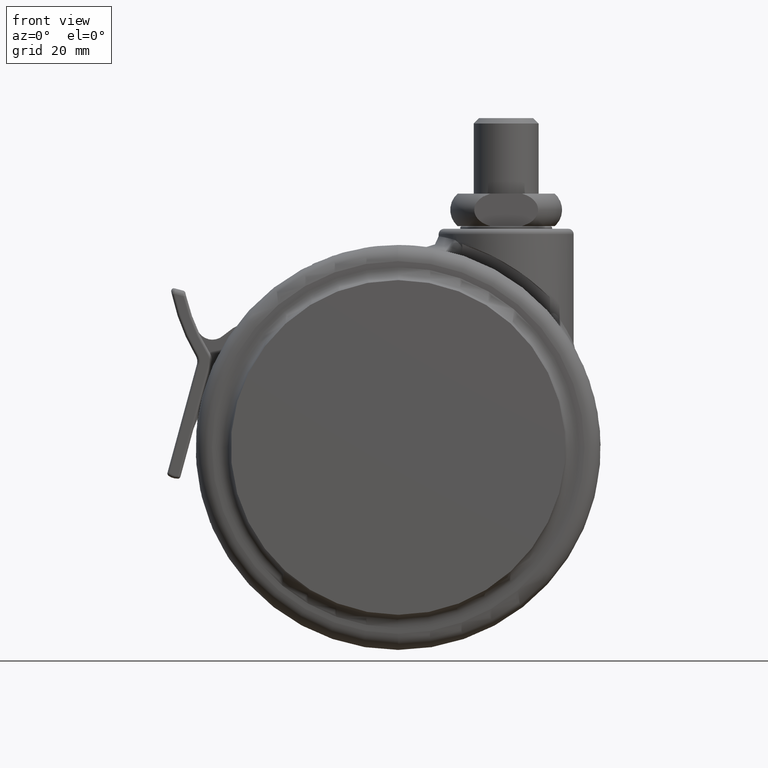
[diagram: clean part render]
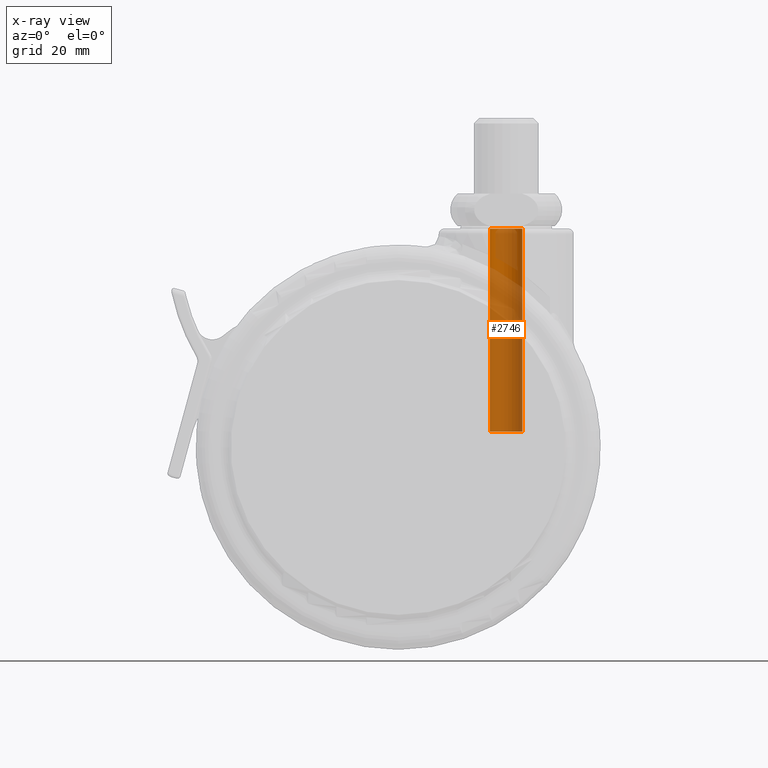
[diagram: x-ray — body ghosted, one internal face saturated and labeled with its STEP entity id]
A machine part, front view, then the same camera in x-ray: the body is ghosted and one INTERNAL B-rep face — a face not visible from any outside direction — is saturated and labeled: STEP entity #2746.
In plain terms, the highlighted cylindrical surface (edge-blend (fillet) strip) has radius 3 mm, axis along (0, 0, 1).
Its self-contained STEP definition (entity closure, byte-faithful):
#38 = EDGE_CURVE ( 'NONE', #4543, #6109, #77, .T. ) ;
#39 = DIRECTION ( 'NONE',  ( 0.0000000000000000000, 0.0000000000000000000, 1.000000000000000000 ) ) ;
#77 = LINE ( 'NONE', #4095, #1879 ) ;
#112 = AXIS2_PLACEMENT_3D ( 'NONE', #5865, #1783, #6538 ) ;
#146 = ORIENTED_EDGE ( 'NONE', *, *, #3642, .T. ) ;
#357 = VERTEX_POINT ( 'NONE', #7834 ) ;
#1289 = FACE_OUTER_BOUND ( 'NONE', #3946, .T. ) ;
#1319 = AXIS2_PLACEMENT_3D ( 'NONE', #2540, #4546, #1855 ) ;
#1351 = CIRCLE ( 'NONE', #112, 3.000000000000000000 ) ;
#1783 = DIRECTION ( 'NONE',  ( -0.0000000000000000000, -0.0000000000000000000, 1.000000000000000000 ) ) ;
#1855 = DIRECTION ( 'NONE',  ( 1.000000000000000000, 0.0000000000000000000, 0.0000000000000000000 ) ) ;
#1879 = VECTOR ( 'NONE', #39, 1000.000000000000000 ) ;
#2127 = VECTOR ( 'NONE', #8020, 1000.000000000000000 ) ;
#2416 = CARTESIAN_POINT ( 'NONE',  ( 0.0000000000000000000, 2.842170943040399500E-014, 0.0000000000000000000 ) ) ;
#2540 = CARTESIAN_POINT ( 'NONE',  ( 0.0000000000000000000, 2.842170943040399500E-014, -1000.000000000000000 ) ) ;
#2746 = ADVANCED_FACE ( 'NONE', ( #1289 ), #4676, .F. ) ;
#2876 = CARTESIAN_POINT ( 'NONE',  ( -3.000000000000000000, 2.878910347014820000E-014, 0.0000000000000000000 ) ) ;
#3106 = DIRECTION ( 'NONE',  ( -1.000000000000000000, 0.0000000000000000000, 0.0000000000000000000 ) ) ;
#3180 = CARTESIAN_POINT ( 'NONE',  ( 3.000000000000000000, 2.842170943040399500E-014, -37.61339081420354800 ) ) ;
#3184 = AXIS2_PLACEMENT_3D ( 'NONE', #2416, #7134, #3106 ) ;
#3642 = EDGE_CURVE ( 'NONE', #7611, #357, #3933, .T. ) ;
#3933 = LINE ( 'NONE', #8675, #2127 ) ;
#3946 = EDGE_LOOP ( 'NONE', ( #4648, #6756, #146, #6783 ) ) ;
#4095 = CARTESIAN_POINT ( 'NONE',  ( -3.000000000000000000, 2.878910347014820000E-014, -1000.000000000000000 ) ) ;
#4543 = VERTEX_POINT ( 'NONE', #5178 ) ;
#4546 = DIRECTION ( 'NONE',  ( 0.0000000000000000000, 0.0000000000000000000, 1.000000000000000000 ) ) ;
#4648 = ORIENTED_EDGE ( 'NONE', *, *, #38, .F. ) ;
#4676 = CYLINDRICAL_SURFACE ( 'NONE', #1319, 3.000000000000000000 ) ;
#5178 = CARTESIAN_POINT ( 'NONE',  ( -3.000000000000000000, 2.878910347014820000E-014, -37.61339081420354800 ) ) ;
#5865 = CARTESIAN_POINT ( 'NONE',  ( 0.0000000000000000000, 2.842170943040399500E-014, -37.61339081420354800 ) ) ;
#6109 = VERTEX_POINT ( 'NONE', #2876 ) ;
#6538 = DIRECTION ( 'NONE',  ( -1.000000000000000000, 0.0000000000000000000, 0.0000000000000000000 ) ) ;
#6756 = ORIENTED_EDGE ( 'NONE', *, *, #8045, .F. ) ;
#6783 = ORIENTED_EDGE ( 'NONE', *, *, #7558, .T. ) ;
#7134 = DIRECTION ( 'NONE',  ( -0.0000000000000000000, -0.0000000000000000000, 1.000000000000000000 ) ) ;
#7558 = EDGE_CURVE ( 'NONE', #357, #6109, #7900, .T. ) ;
#7611 = VERTEX_POINT ( 'NONE', #3180 ) ;
#7834 = CARTESIAN_POINT ( 'NONE',  ( 3.000000000000000000, 2.842170943040399500E-014, 0.0000000000000000000 ) ) ;
#7900 = CIRCLE ( 'NONE', #3184, 3.000000000000000000 ) ;
#8020 = DIRECTION ( 'NONE',  ( 0.0000000000000000000, 0.0000000000000000000, 1.000000000000000000 ) ) ;
#8045 = EDGE_CURVE ( 'NONE', #7611, #4543, #1351, .T. ) ;
#8675 = CARTESIAN_POINT ( 'NONE',  ( 3.000000000000000000, 2.842170943040399500E-014, -1000.000000000000000 ) ) ;